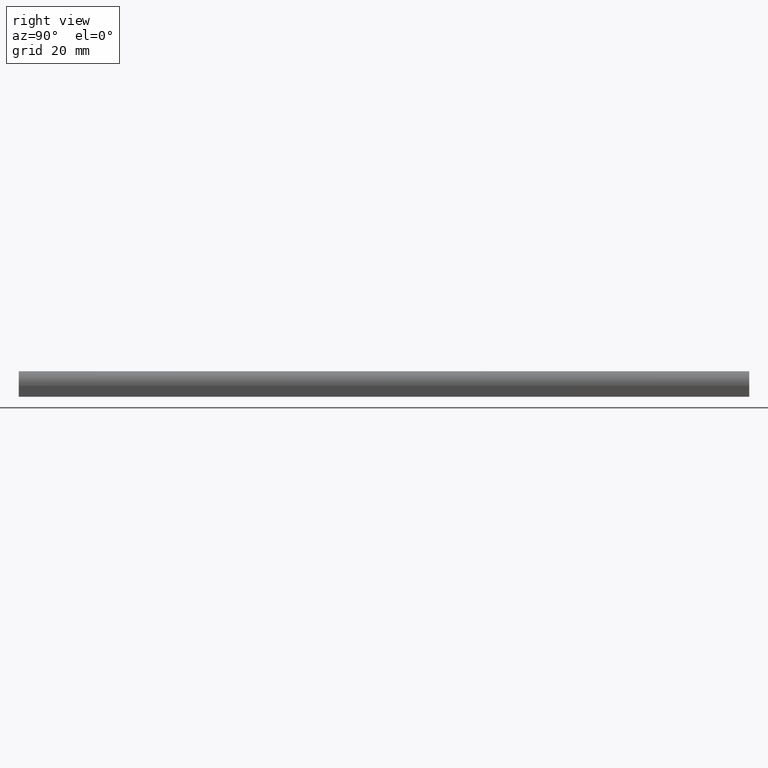
[diagram: clean part render]
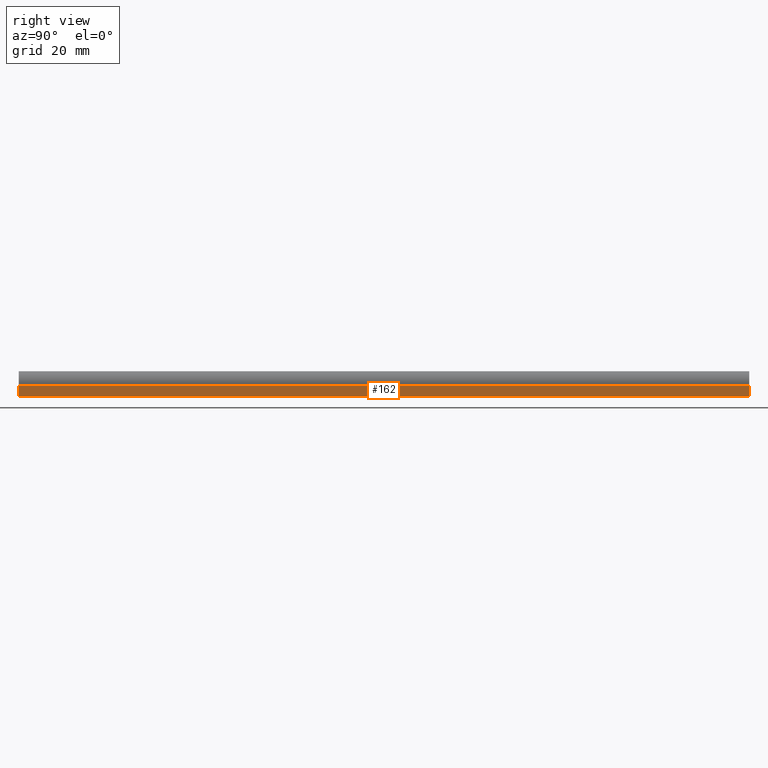
[diagram: same view with one face highlighted and labeled with its STEP entity id]
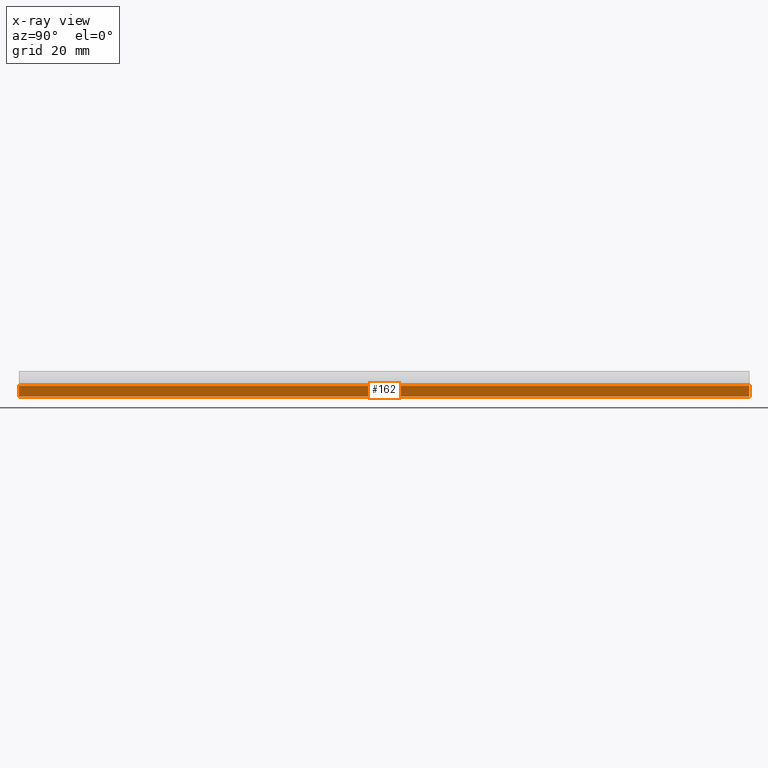
[diagram: x-ray of the same camera — body ghosted, the highlighted face saturated]
A machine part, right view. The second image highlights one B-rep face of the part: STEP entity #162.
The next image is the same camera in x-ray: the body ghosted, the highlighted face saturated — about 0% of this face is hidden behind the body in this view.
In plain terms, the highlighted planar face has unit normal (1, 0, 0).
Its self-contained STEP definition (entity closure, byte-faithful):
#20 = DIRECTION ( 'NONE',  ( -0.0000000000000000000, -0.0000000000000000000, 1.000000000000000000 ) ) ;
#30 = VECTOR ( 'NONE', #172, 1000.000000000000000 ) ;
#36 = VERTEX_POINT ( 'NONE', #173 ) ;
#39 = CARTESIAN_POINT ( 'NONE',  ( 4.000000000000000000, 200.0000000000000000, -0.5000000000000000000 ) ) ;
#50 = CARTESIAN_POINT ( 'NONE',  ( 4.000000000000000000, 1000.000000000000000, -0.5000000000000000000 ) ) ;
#53 = VECTOR ( 'NONE', #62, 1000.000000000000000 ) ;
#62 = DIRECTION ( 'NONE',  ( 0.0000000000000000000, -1.000000000000000000, 0.0000000000000000000 ) ) ;
#74 = ORIENTED_EDGE ( 'NONE', *, *, #93, .F. ) ;
#93 = EDGE_CURVE ( 'NONE', #210, #36, #121, .T. ) ;
#94 = DIRECTION ( 'NONE',  ( 1.000000000000000000, 0.0000000000000000000, 0.0000000000000000000 ) ) ;
#100 = ORIENTED_EDGE ( 'NONE', *, *, #147, .T. ) ;
#102 = EDGE_CURVE ( 'NONE', #36, #103, #204, .T. ) ;
#103 = VERTEX_POINT ( 'NONE', #113 ) ;
#108 = DIRECTION ( 'NONE',  ( 0.0000000000000000000, 0.0000000000000000000, -1.000000000000000000 ) ) ;
#113 = CARTESIAN_POINT ( 'NONE',  ( 4.000000000000000000, 0.0000000000000000000, -0.5000000000000000000 ) ) ;
#121 = LINE ( 'NONE', #238, #30 ) ;
#123 = FACE_OUTER_BOUND ( 'NONE', #199, .T. ) ;
#131 = LINE ( 'NONE', #50, #53 ) ;
#133 = VECTOR ( 'NONE', #20, 1000.000000000000000 ) ;
#141 = VERTEX_POINT ( 'NONE', #39 ) ;
#146 = ORIENTED_EDGE ( 'NONE', *, *, #236, .T. ) ;
#147 = EDGE_CURVE ( 'NONE', #210, #141, #148, .T. ) ;
#148 = LINE ( 'NONE', #151, #133 ) ;
#151 = CARTESIAN_POINT ( 'NONE',  ( 4.000000000000000000, 200.0000000000000000, 0.0000000000000000000 ) ) ;
#162 = ADVANCED_FACE ( 'NONE', ( #123 ), #166, .T. ) ;
#163 = CARTESIAN_POINT ( 'NONE',  ( 4.000000000000000000, 1000.000000000000000, -3.500000000000000000 ) ) ;
#166 = PLANE ( 'NONE',  #222 ) ;
#172 = DIRECTION ( 'NONE',  ( 0.0000000000000000000, -1.000000000000000000, 0.0000000000000000000 ) ) ;
#173 = CARTESIAN_POINT ( 'NONE',  ( 4.000000000000000000, 0.0000000000000000000, -3.500000000000000000 ) ) ;
#183 = DIRECTION ( 'NONE',  ( -0.0000000000000000000, -0.0000000000000000000, 1.000000000000000000 ) ) ;
#187 = VECTOR ( 'NONE', #183, 1000.000000000000000 ) ;
#189 = CARTESIAN_POINT ( 'NONE',  ( 4.000000000000000000, 0.0000000000000000000, 0.0000000000000000000 ) ) ;
#197 = ORIENTED_EDGE ( 'NONE', *, *, #102, .F. ) ;
#199 = EDGE_LOOP ( 'NONE', ( #197, #74, #100, #146 ) ) ;
#204 = LINE ( 'NONE', #189, #187 ) ;
#210 = VERTEX_POINT ( 'NONE', #223 ) ;
#222 = AXIS2_PLACEMENT_3D ( 'NONE', #163, #94, #108 ) ;
#223 = CARTESIAN_POINT ( 'NONE',  ( 4.000000000000000000, 200.0000000000000000, -3.500000000000000000 ) ) ;
#236 = EDGE_CURVE ( 'NONE', #141, #103, #131, .T. ) ;
#238 = CARTESIAN_POINT ( 'NONE',  ( 4.000000000000000000, 1000.000000000000000, -3.500000000000000000 ) ) ;